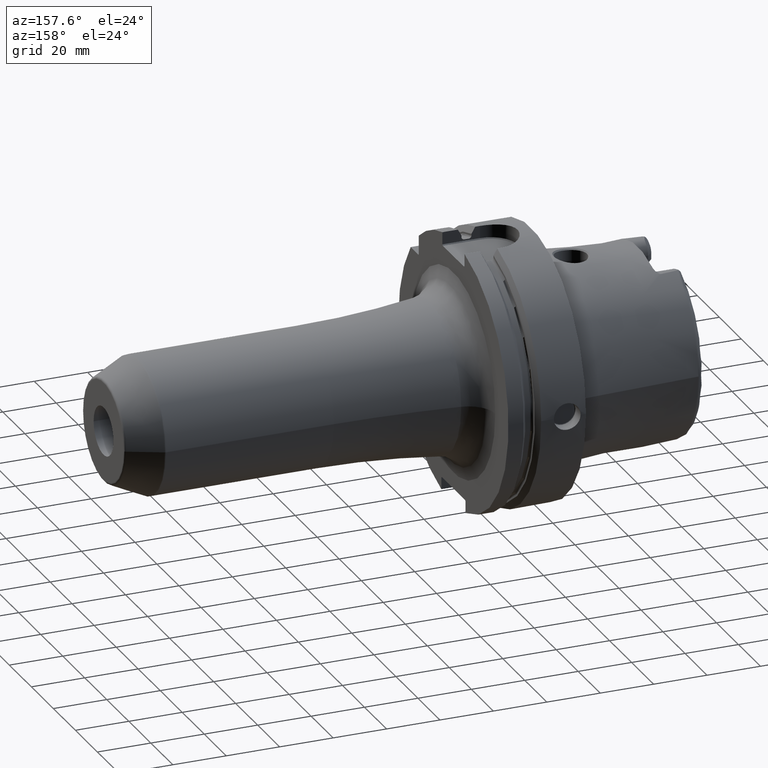
[diagram: clean part render]
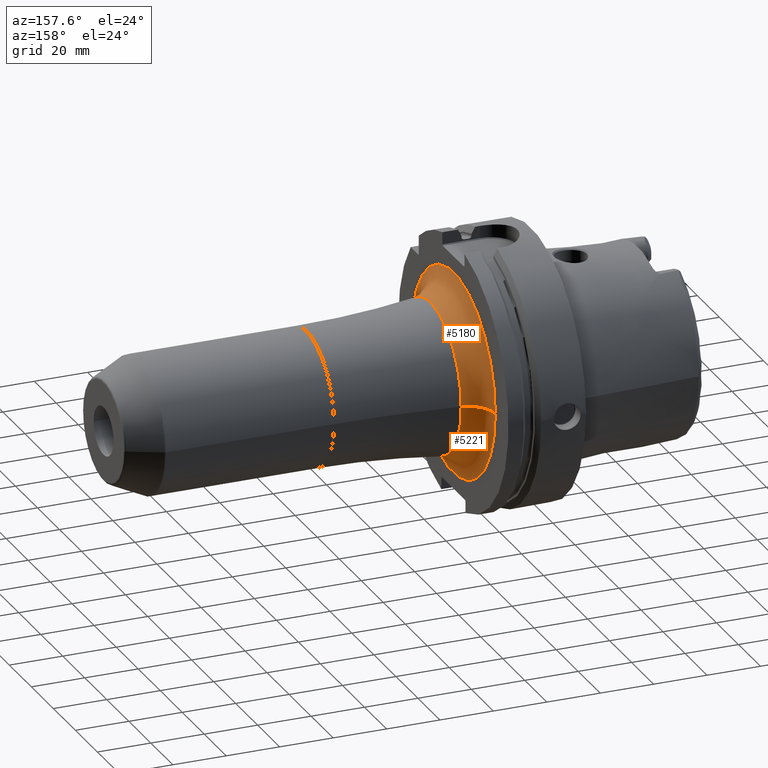
[diagram: same view with one multi-face feature highlighted, each face labeled with its STEP entity id]
A machine part, auxiliary view. The highlighted faces form ONE feature: a constant-radius fillet chain: 2 tangent blend faces with common blend radius 10 mm. The faces share edges in the B-rep.
Their STEP definitions:
[1] entity #5221 (Torus):
#1096=CARTESIAN_POINT('',(2.9E1,0.E0,0.E0));
#1097=DIRECTION('',(1.E0,0.E0,0.E0));
#1098=DIRECTION('',(0.E0,-1.E0,0.E0));
#1099=AXIS2_PLACEMENT_3D('',#1096,#1097,#1098);
#1810=CARTESIAN_POINT('',(3.9E1,3.799109804042E1,-1.720568132413E-13));
#1811=DIRECTION('',(0.E0,0.E0,1.E0));
#1812=DIRECTION('',(-1.E0,0.E0,0.E0));
#1813=AXIS2_PLACEMENT_3D('',#1810,#1811,#1812);
#1830=CARTESIAN_POINT('',(3.767647058823E1,0.E0,0.E0));
#1831=DIRECTION('',(1.E0,0.E0,0.E0));
#1832=DIRECTION('',(0.E0,-1.E0,0.E0));
#1833=AXIS2_PLACEMENT_3D('',#1830,#1831,#1832);
#1835=CARTESIAN_POINT('',(3.9E1,-3.799109804042E1,1.593308818215E-13));
#1836=DIRECTION('',(0.E0,0.E0,-1.E0));
#1837=DIRECTION('',(-1.E0,0.E0,0.E0));
#1838=AXIS2_PLACEMENT_3D('',#1835,#1836,#1837);
#3341=CARTESIAN_POINT('',(3.767647058823E1,2.807907151220E1,0.E0));
#3342=CARTESIAN_POINT('',(3.767647058823E1,-2.807907151220E1,0.E0));
#3343=VERTEX_POINT('',#3341);
#3344=VERTEX_POINT('',#3342);
#3345=CARTESIAN_POINT('',(2.9E1,3.799109804042E1,-9.883243751173E-14));
#3346=CARTESIAN_POINT('',(2.9E1,-3.799109804042E1,1.034850051729E-13));
#3347=VERTEX_POINT('',#3345);
#3348=VERTEX_POINT('',#3346);
#5210=CARTESIAN_POINT('',(3.9E1,0.E0,0.E0));
#5211=DIRECTION('',(1.E0,0.E0,0.E0));
#5212=DIRECTION('',(0.E0,-9.999956575653E-1,2.947007038307E-3));
#5213=AXIS2_PLACEMENT_3D('',#5210,#5211,#5212);
#5214=TOROIDAL_SURFACE('',#5213,3.799109804042E1,1.E1);
#5215=ORIENTED_EDGE('',*,*,#4448,.F.);
#5216=ORIENTED_EDGE('',*,*,#5173,.T.);
#5217=ORIENTED_EDGE('',*,*,#5201,.T.);
#5218=ORIENTED_EDGE('',*,*,#5176,.F.);
#5219=EDGE_LOOP('',(#5215,#5216,#5217,#5218));
#5220=FACE_OUTER_BOUND('',#5219,.F.);
#5221=ADVANCED_FACE('',(#5220),#5214,.F.);
#1100=CIRCLE('',#1099,3.799109804042E1);
#1814=CIRCLE('',#1813,1.E1);
#1834=CIRCLE('',#1833,2.807907151220E1);
#1839=CIRCLE('',#1838,1.E1);
#4448=EDGE_CURVE('',#3348,#3347,#1100,.T.);
#5173=EDGE_CURVE('',#3348,#3344,#1839,.T.);
#5176=EDGE_CURVE('',#3347,#3343,#1814,.T.);
#5201=EDGE_CURVE('',#3344,#3343,#1834,.T.);
[2] entity #5180 (Torus):
#1091=CARTESIAN_POINT('',(2.9E1,0.E0,0.E0));
#1092=DIRECTION('',(1.E0,0.E0,0.E0));
#1093=DIRECTION('',(0.E0,1.E0,0.E0));
#1094=AXIS2_PLACEMENT_3D('',#1091,#1092,#1093);
#1810=CARTESIAN_POINT('',(3.9E1,3.799109804042E1,-1.720568132413E-13));
#1811=DIRECTION('',(0.E0,0.E0,1.E0));
#1812=DIRECTION('',(-1.E0,0.E0,0.E0));
#1813=AXIS2_PLACEMENT_3D('',#1810,#1811,#1812);
#1815=CARTESIAN_POINT('',(3.767647058823E1,0.E0,0.E0));
#1816=DIRECTION('',(1.E0,0.E0,0.E0));
#1817=DIRECTION('',(0.E0,1.E0,0.E0));
#1818=AXIS2_PLACEMENT_3D('',#1815,#1816,#1817);
#1835=CARTESIAN_POINT('',(3.9E1,-3.799109804042E1,1.593308818215E-13));
#1836=DIRECTION('',(0.E0,0.E0,-1.E0));
#1837=DIRECTION('',(-1.E0,0.E0,0.E0));
#1838=AXIS2_PLACEMENT_3D('',#1835,#1836,#1837);
#3341=CARTESIAN_POINT('',(3.767647058823E1,2.807907151220E1,0.E0));
#3342=CARTESIAN_POINT('',(3.767647058823E1,-2.807907151220E1,0.E0));
#3343=VERTEX_POINT('',#3341);
#3344=VERTEX_POINT('',#3342);
#3345=CARTESIAN_POINT('',(2.9E1,3.799109804042E1,-9.883243751173E-14));
#3346=CARTESIAN_POINT('',(2.9E1,-3.799109804042E1,1.034850051729E-13));
#3347=VERTEX_POINT('',#3345);
#3348=VERTEX_POINT('',#3346);
#5166=CARTESIAN_POINT('',(3.9E1,0.E0,0.E0));
#5167=DIRECTION('',(1.E0,0.E0,0.E0));
#5168=DIRECTION('',(0.E0,9.999956575653E-1,-2.947007038307E-3));
#5169=AXIS2_PLACEMENT_3D('',#5166,#5167,#5168);
#5170=TOROIDAL_SURFACE('',#5169,3.799109804042E1,1.E1);
#5172=ORIENTED_EDGE('',*,*,#5171,.T.);
#5174=ORIENTED_EDGE('',*,*,#5173,.F.);
#5175=ORIENTED_EDGE('',*,*,#4446,.F.);
#5177=ORIENTED_EDGE('',*,*,#5176,.T.);
#5178=EDGE_LOOP('',(#5172,#5174,#5175,#5177));
#5179=FACE_OUTER_BOUND('',#5178,.F.);
#5180=ADVANCED_FACE('',(#5179),#5170,.F.);
#1095=CIRCLE('',#1094,3.799109804042E1);
#1814=CIRCLE('',#1813,1.E1);
#1819=CIRCLE('',#1818,2.807907151220E1);
#1839=CIRCLE('',#1838,1.E1);
#4446=EDGE_CURVE('',#3347,#3348,#1095,.T.);
#5171=EDGE_CURVE('',#3343,#3344,#1819,.T.);
#5173=EDGE_CURVE('',#3348,#3344,#1839,.T.);
#5176=EDGE_CURVE('',#3347,#3343,#1814,.T.);